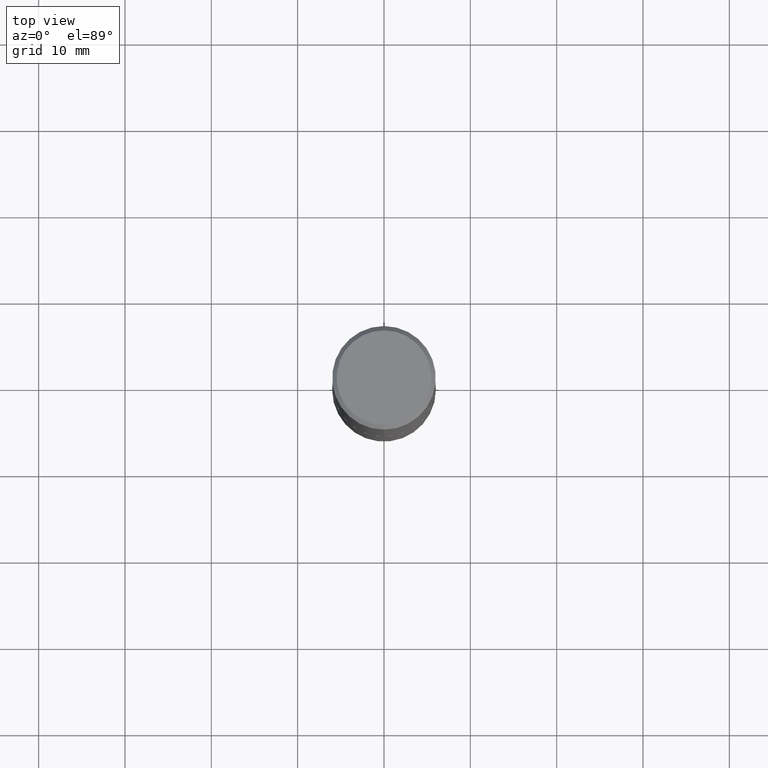
[diagram: clean part render]
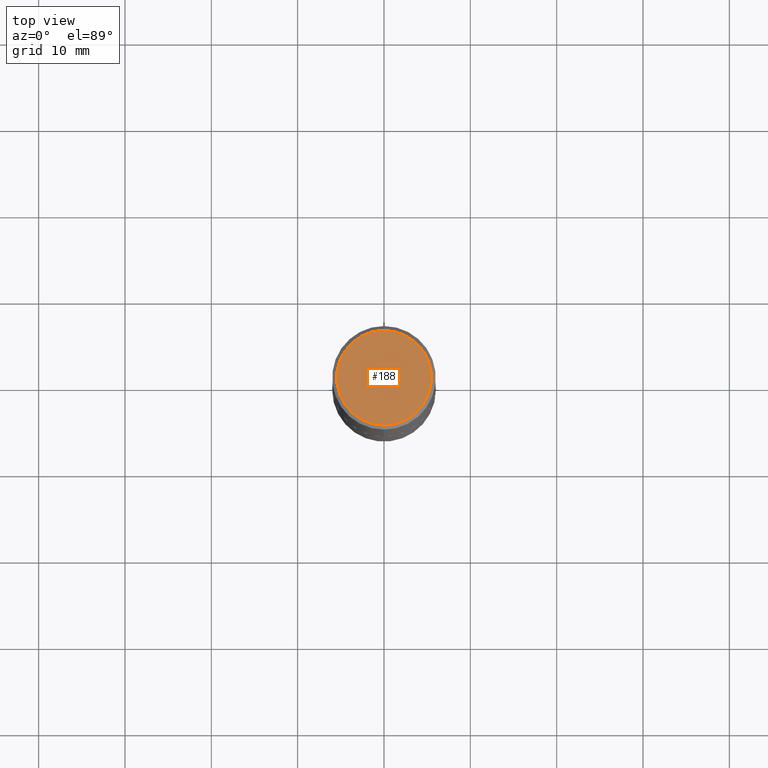
[diagram: same view with one face highlighted and labeled with its STEP entity id]
A machine part, top view. The second image highlights one B-rep face of the part: STEP entity #188.
In plain terms, the highlighted planar face has unit normal (0, -0, -1).
Its self-contained STEP definition (entity closure, byte-faithful):
#29 = VERTEX_POINT ( 'NONE', #268 ) ;
#33 = DIRECTION ( 'NONE',  ( -2.445371925614294233E-29, 3.491620077334691546E-15, 1.000000000000000000 ) ) ;
#40 = AXIS2_PLACEMENT_3D ( 'NONE', #221, #33, #346 ) ;
#109 = EDGE_CURVE ( 'NONE', #29, #223, #183, .T. ) ;
#123 = CARTESIAN_POINT ( 'NONE',  ( 1.509716530915768154E-15, 0.2161999999999996425, -5.905355322199570835E-16 ) ) ;
#147 = DIRECTION ( 'NONE',  ( -2.445371925614294233E-29, 3.491620077334691546E-15, 1.000000000000000000 ) ) ;
#155 = AXIS2_PLACEMENT_3D ( 'NONE', #322, #147, #257 ) ;
#167 = EDGE_CURVE ( 'NONE', #223, #29, #356, .T. ) ;
#183 = CIRCLE ( 'NONE', #40, 0.2161999999999996425 ) ;
#186 = FACE_OUTER_BOUND ( 'NONE', #391, .T. ) ;
#188 = ADVANCED_FACE ( 'NONE', ( #186 ), #315, .F. ) ;
#211 = AXIS2_PLACEMENT_3D ( 'NONE', #123, #251, #262 ) ;
#221 = CARTESIAN_POINT ( 'NONE',  ( -8.038070963430480451E-45, 1.147714573189292330E-30, 3.287054569996039822E-16 ) ) ;
#223 = VERTEX_POINT ( 'NONE', #389 ) ;
#251 = DIRECTION ( 'NONE',  ( 2.445371925614293953E-29, -3.491620077334691546E-15, -1.000000000000000000 ) ) ;
#257 = DIRECTION ( 'NONE',  ( -6.982962677686265922E-15, -1.000000000000000000, 3.491620077334691152E-15 ) ) ;
#258 = ORIENTED_EDGE ( 'NONE', *, *, #109, .T. ) ;
#262 = DIRECTION ( 'NONE',  ( 6.982962677686265922E-15, 1.000000000000000000, -3.491620077334691546E-15 ) ) ;
#268 = CARTESIAN_POINT ( 'NONE',  ( -1.551844647095918761E-15, -0.2161999999999996425, 1.083593717719362934E-15 ) ) ;
#315 = PLANE ( 'NONE',  #211 ) ;
#319 = ORIENTED_EDGE ( 'NONE', *, *, #167, .T. ) ;
#322 = CARTESIAN_POINT ( 'NONE',  ( -8.038070963430480451E-45, 1.147714573189292330E-30, 3.287054569996039822E-16 ) ) ;
#346 = DIRECTION ( 'NONE',  ( -6.982962677686265922E-15, -1.000000000000000000, 3.491620077334691152E-15 ) ) ;
#356 = CIRCLE ( 'NONE', #155, 0.2161999999999996425 ) ;
#389 = CARTESIAN_POINT ( 'NONE',  ( 1.579546157692632438E-15, 0.2161999999999996425, -4.261828037201549199E-16 ) ) ;
#391 = EDGE_LOOP ( 'NONE', ( #319, #258 ) ) ;